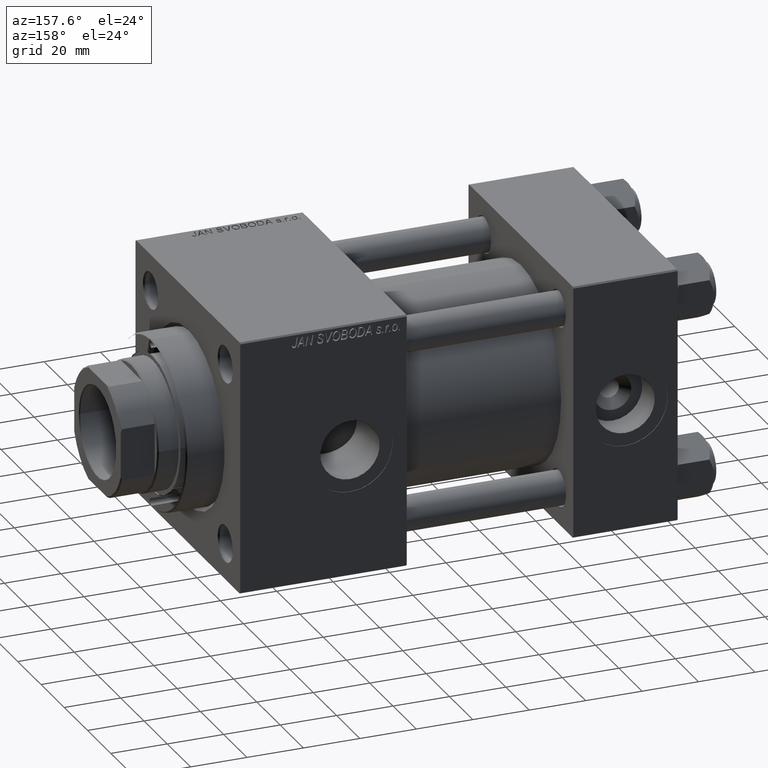
[diagram: clean part render]
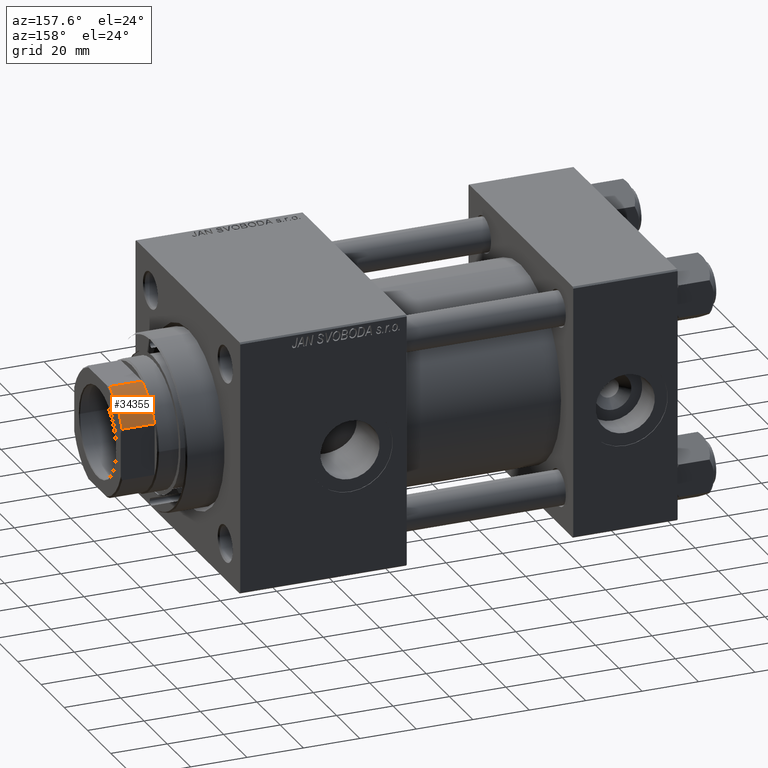
[diagram: same view with one face highlighted and labeled with its STEP entity id]
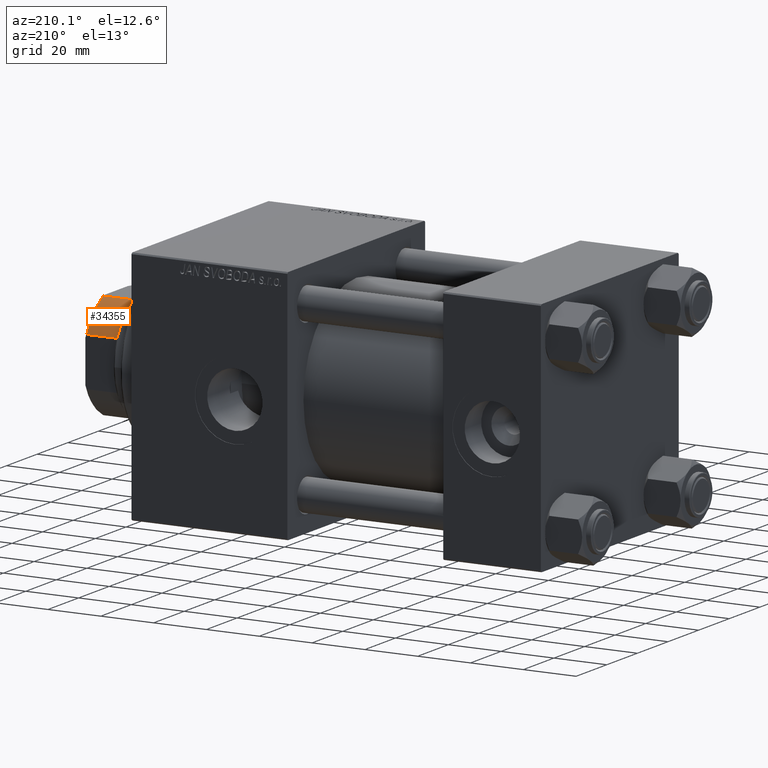
[diagram: same view with one face highlighted and labeled with its STEP entity id]
A machine part, auxiliary view. The second image highlights one B-rep face of the part: STEP entity #34355.
A second angle (auxiliary view) of the same face is appended — the face is thin or edge-on in the first view.
In plain terms, the highlighted cylindrical surface (partial cylindrical patch) has radius 22 mm, axis along (1, 0, 0).
Its self-contained STEP definition (entity closure, byte-faithful):
#370 = VERTEX_POINT ( 'NONE', #47501 ) ;
#1030 = VERTEX_POINT ( 'NONE', #2341 ) ;
#2341 = CARTESIAN_POINT ( 'NONE',  ( -20.00000000000000000, -9.165151389911677882, 149.5000000000000568 ) ) ;
#6754 = VECTOR ( 'NONE', #12022, 1000.000000000000000 ) ;
#9211 = ORIENTED_EDGE ( 'NONE', *, *, #15888, .T. ) ;
#9604 = ORIENTED_EDGE ( 'NONE', *, *, #14694, .T. ) ;
#12022 = DIRECTION ( 'NONE',  ( -0.000000000000000000, -0.000000000000000000, 1.000000000000000000 ) ) ;
#13233 = DIRECTION ( 'NONE',  ( 0.000000000000000000, 0.000000000000000000, 1.000000000000000000 ) ) ;
#13453 = CARTESIAN_POINT ( 'NONE',  ( -20.00000000000000000, -9.165151389911677882, 138.0000000000000568 ) ) ;
#14694 = EDGE_CURVE ( 'NONE', #45018, #1030, #20958, .T. ) ;
#15888 = EDGE_CURVE ( 'NONE', #32061, #370, #45320, .T. ) ;
#17838 = CARTESIAN_POINT ( 'NONE',  ( -9.165151389911676105, -20.00000000000000000, 149.5000000000000568 ) ) ;
#18165 = AXIS2_PLACEMENT_3D ( 'NONE', #43558, #24214, #39736 ) ;
#18585 = LINE ( 'NONE', #37666, #47017 ) ;
#18792 = EDGE_CURVE ( 'NONE', #32061, #1030, #18585, .T. ) ;
#19503 = ORIENTED_EDGE ( 'NONE', *, *, #34104, .T. ) ;
#20419 = CARTESIAN_POINT ( 'NONE',  ( 0.000000000000000000, 0.000000000000000000, 149.5000000000000568 ) ) ;
#20658 = FACE_OUTER_BOUND ( 'NONE', #42725, .T. ) ;
#20958 = CIRCLE ( 'NONE', #27450, 22.00000000000000000 ) ;
#22979 = CARTESIAN_POINT ( 'NONE',  ( -9.165151389911676105, -20.00000000000000000, -0.001000000000001000089 ) ) ;
#24214 = DIRECTION ( 'NONE',  ( -0.000000000000000000, -0.000000000000000000, 1.000000000000000000 ) ) ;
#26520 = ORIENTED_EDGE ( 'NONE', *, *, #18792, .F. ) ;
#27450 = AXIS2_PLACEMENT_3D ( 'NONE', #20419, #43576, #36449 ) ;
#31116 = LINE ( 'NONE', #22979, #6754 ) ;
#32061 = VERTEX_POINT ( 'NONE', #13453 ) ;
#34104 = EDGE_CURVE ( 'NONE', #370, #45018, #31116, .T. ) ;
#34355 = ADVANCED_FACE ( 'NONE', ( #20658 ), #36182, .T. ) ;
#34605 = DIRECTION ( 'NONE',  ( -0.000000000000000000, -0.000000000000000000, 1.000000000000000000 ) ) ;
#36182 = CYLINDRICAL_SURFACE ( 'NONE', #18165, 22.00000000000000000 ) ;
#36358 = AXIS2_PLACEMENT_3D ( 'NONE', #47852, #13233, #40455 ) ;
#36449 = DIRECTION ( 'NONE',  ( 1.000000000000000000, 0.000000000000000000, 0.000000000000000000 ) ) ;
#37666 = CARTESIAN_POINT ( 'NONE',  ( -20.00000000000000000, -9.165151389911677882, -0.001000000000001000089 ) ) ;
#39736 = DIRECTION ( 'NONE',  ( 1.000000000000000000, 0.000000000000000000, 0.000000000000000000 ) ) ;
#40455 = DIRECTION ( 'NONE',  ( 1.000000000000000000, 0.000000000000000000, 0.000000000000000000 ) ) ;
#42725 = EDGE_LOOP ( 'NONE', ( #19503, #9604, #26520, #9211 ) ) ;
#43558 = CARTESIAN_POINT ( 'NONE',  ( 0.000000000000000000, 0.000000000000000000, -0.001000000000001000089 ) ) ;
#43576 = DIRECTION ( 'NONE',  ( -0.000000000000000000, -0.000000000000000000, -1.000000000000000000 ) ) ;
#45018 = VERTEX_POINT ( 'NONE', #17838 ) ;
#45320 = CIRCLE ( 'NONE', #36358, 22.00000000000004619 ) ;
#47017 = VECTOR ( 'NONE', #34605, 1000.000000000000000 ) ;
#47501 = CARTESIAN_POINT ( 'NONE',  ( -9.165151389911676105, -20.00000000000000000, 138.0000000000000568 ) ) ;
#47852 = CARTESIAN_POINT ( 'NONE',  ( 0.000000000000000000, 0.000000000000000000, 138.0000000000000000 ) ) ;